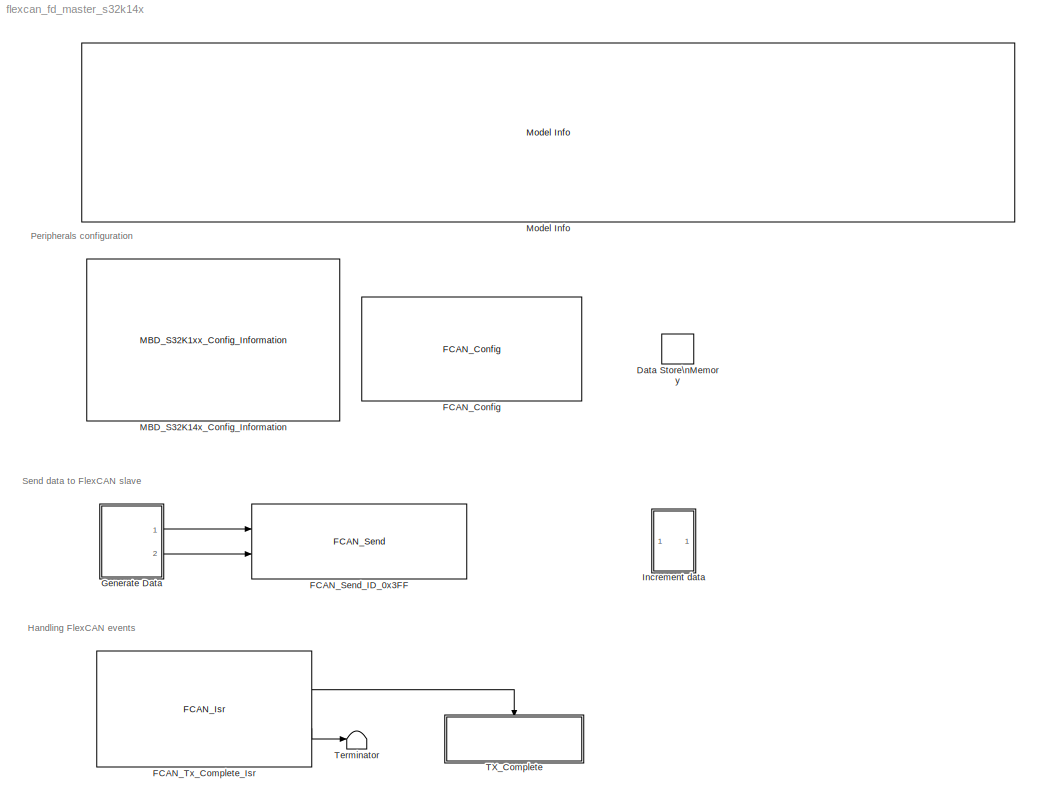
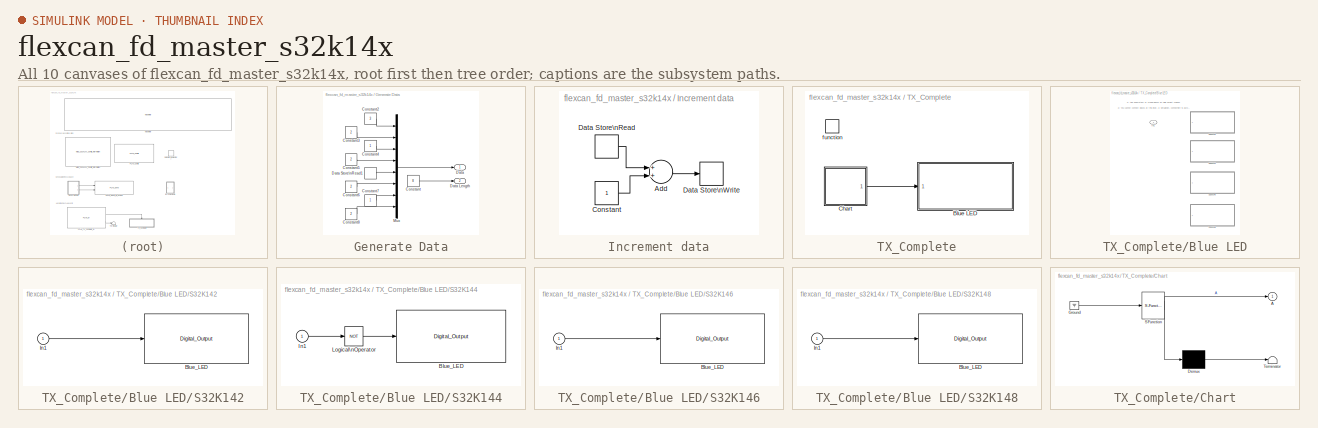
[diagram: thumbnail index - all 10 canvases of the model, root first then tree order]
MODEL flexcan_fd_master_s32k14x
KIND model
CONFIG InitFcn = mbd_s32k_consistency_checks(bdroot(gcs));
CONFIG PreLoadFcn = mbd_s32k_examples_preload_cbk;
BLOCK [DataStoreMemory] Data Store\nMemory
  DataStoreName = data
  OutDataTypeStr = uint8
  ReadBeforeWriteMsg = warning
  SID = 269
  ShowAdditionalParam = off
  WriteAfterReadMsg = warning
  WriteAfterWriteMsg = warning
BLOCK [Reference] FCAN_Config  REF=mbd_s32k1xx_ec_toolbox/Communication Blocks/CAN Blocks/FCAN_Config
  Ports = []
  Priority = 1
  SID = 2
  SourceBlock = mbd_s32k1xx_ec_toolbox/Communication Blocks/CAN Blocks/FCAN_Config
  SourceType = fcan_s32k_config
  bitrate = 500
  bitrate_adv_opts = off
  can_cbt_presdiv = 3
  can_cbt_propseg = 27
  can_cbt_pseg1 = 5
  can_cbt_pseg2 = 5
  can_cbt_rjw = 3
  can_clk_src = Peripheral clock
  can_fd_enable = on
  can_fifo_id_filter = {'0x0', '0x0', '0x0', '0x0', '0x0', '0x0', '0x0', '0x0'}
  can_fifo_id_filter_extended = off
  can_fifo_id_filter_remote = off
  can_fifo_id_format = A
  can_idfilter_extendedid = off
  can_idfilter_id1 = 0
  can_idfilter_id2 = 0
  can_idfilter_remoteframe = off
  can_idfilter_type = Match exact
  can_instance = 0
  can_match_timeout = 1
  can_max_num_mb = 16
  can_mode = Normal mode
  can_multiple_matches_en = off
  can_num_id_filters = 8
  can_num_matches = 1
  can_payload = 8
  can_payloadfilter_dlchigh = 0
  can_payloadfilter_dlclow = 0
  can_payloadfilter_enable = off
  can_payloadfilter_payload1_b0 = 0
  can_payloadfilter_payload1_b1 = 0
  can_payloadfilter_payload1_b2 = 0
  can_payloadfilter_payload1_b3 = 0
  can_payloadfilter_payload1_b4 = 0
  can_payloadfilter_payload1_b5 = 0
  can_payloadfilter_payload1_b6 = 0
  can_payloadfilter_payload1_b7 = 0
  can_payloadfilter_payload2_b0 = 0
  can_payloadfilter_payload2_b1 = 0
  can_payloadfilter_payload2_b2 = 0
  can_payloadfilter_payload2_b3 = 0
  can_payloadfilter_payload2_b4 = 0
  can_payloadfilter_payload2_b5 = 0
  can_payloadfilter_payload2_b6 = 0
  can_payloadfilter_payload2_b7 = 0
  can_payloadfilter_type = Match exact
  can_pn_enable = off
  can_presdiv = 7
  can_propseg = 7
  can_pseg1 = 6
  can_pseg2 = 3
  can_rjw = 3
  can_rx = PTE4: [CAN0_RX | CAN Rx channel]
  can_rxfifo_enable = off
  can_timeout_en = off
  can_tx = PTE5: [CAN0_TX | CAN Tx Channel]
  can_wakeup_match = off
  can_wakeup_timeout = off
  show_adv_opts = on
BLOCK [Reference] FCAN_Send_ID_0x3FF  REF=mbd_s32k1xx_ec_toolbox/Communication Blocks/CAN Blocks/FCAN_Send
  Ports = [2]
  Priority = 2
  SID = 212
  SourceBlock = mbd_s32k1xx_ec_toolbox/Communication Blocks/CAN Blocks/FCAN_Send
  SourceType = fcan_s32k_send
  can_enable_brs = off
  can_extended_id = off
  can_fd_enable = on
  can_fd_padding = 0
  can_id = 3FF
  can_instance = 0
  can_is_remote = off
  can_mb_idx = 15
  can_mode = Non-blocking
  can_timeout_ms = 0
  show_adv_opts = on
BLOCK [Reference] FCAN_Tx_Complete_Isr  REF=mbd_s32k1xx_ec_toolbox/Communication Blocks/CAN Blocks/FCAN_Isr
  Ports = [0, 2]
  SID = 86
  SourceBlock = mbd_s32k1xx_ec_toolbox/Communication Blocks/CAN Blocks/FCAN_Isr
  SourceType = fcan_s32k_isr
  can_event = Tx Complete
  can_instance = 0
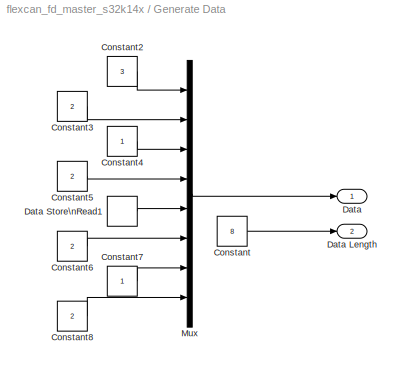
BLOCK [SubSystem] Generate Data
  Ports = [0, 2]
  RequestExecContextInheritance = off
  SID = 240
  Variant = off
BLOCK [Constant] Generate Data/Constant
  OutDataTypeStr = uint8
  SID = 203
  Value = 8
BLOCK [Constant] Generate Data/Constant2
  OutDataTypeStr = uint8
  SID = 204
  Value = 3
BLOCK [Constant] Generate Data/Constant3
  OutDataTypeStr = uint8
  SID = 205
  Value = 2
BLOCK [Constant] Generate Data/Constant4
  OutDataTypeStr = uint8
  SID = 206
BLOCK [Constant] Generate Data/Constant5
  OutDataTypeStr = uint8
  SID = 207
  Value = 2
BLOCK [Constant] Generate Data/Constant6
  OutDataTypeStr = uint8
  SID = 208
  Value = 2
BLOCK [Constant] Generate Data/Constant7
  OutDataTypeStr = uint8
  SID = 209
BLOCK [Constant] Generate Data/Constant8
  OutDataTypeStr = uint8
  SID = 210
  Value = 2
BLOCK [Outport] Generate Data/Data
  IconDisplay = Port number
  SID = 241
BLOCK [Outport] Generate Data/Data Length
  IconDisplay = Port number
  Port = 2
  SID = 242
BLOCK [DataStoreRead] Generate Data/Data Store\nRead1
  DataStoreName = data
  Ports = [0, 1]
  SID = 275
BLOCK [Mux] Generate Data/Mux
  DisplayOption = bar
  Inputs = 8
  Ports = [8, 1]
  SID = 213
BLOCK [SubSystem] Increment data
  Ports = []
  RequestExecContextInheritance = off
  SID = 270
  Variant = off
BLOCK [Sum] Increment data/Add
  InputSameDT = off
  OutDataTypeStr = Inherit: Inherit via internal rule
  Ports = [2, 1]
  SID = 271
  SaturateOnIntegerOverflow = off
BLOCK [Constant] Increment data/Constant
  OutDataTypeStr = uint8
  SID = 272
BLOCK [DataStoreRead] Increment data/Data Store\nRead
  DataStoreName = data
  Ports = [0, 1]
  SID = 273
BLOCK [DataStoreWrite] Increment data/Data Store\nWrite
  DataStoreName = data
  Ports = [1]
  SID = 274
BLOCK [Reference] MBD_S32K14x_Config_Information  REF=mbd_s32k1xx_ec_toolbox/MBD_S32K1xx_Config_Information
  ADC_PcrCheckEnDis = on
  AMMCLIB_PcrCheckEnDis = on
  CMP_PcrCheckEnDis = on
  CSEc_PcrCheckEnDis = on
  ConfigParams_PcrCheckEnDis = on
  FM_PcrCheckEnDis = on
  FTM_Dual_Edge_Inputs_PcrCheckEnDis = on
  FTM_Hall_Sensor_Inputs_PcrCheckEnDis = on
  FTM_Input_Edge_Inputs_PcrCheckEnDis = on
  FTM_PWM_PcrCheckEnDis = on
  FTM_Quadrature_Inputs_PcrCheckEnDis = on
  FlexCAN_PcrCheckEnDis = on
  FlexIO_PcrCheckEnDis = on
  GPIO_InputPcrCheckEnDis = on
  GPIO_OutputPcrCheckEnDis = on
  LIN_PcrCheckEnDis = on
  LPI2C_PcrCheckEnDis = on
  LPSPI_PcrCheckEnDis = on
  LPTMR_PcrCheckEnDis = on
  LPUART_PcrCheckEnDis = on
  ModelRef_PcrCheckEnDis = on
  PDB0_PcrCheckEnDis = on
  PIT_PcrCheckEnDis = on
  Ports = []
  Profile_PcrCheckEnDis = on
  RTC_PcrCheckEnDis = on
  SBC_PcrCheckEnDis = on
  SID = 246
  SourceBlock = mbd_s32k1xx_ec_toolbox/MBD_S32K1xx_Config_Information
  SourceType = MBDTBX_EC_S32K
  WDOG_PcrCheckEnDis = on
  config_params = []
  disp_str = Target : S32K144-64KB_SRAM\nPackage : 100-pin\nSystem clock : 80 MHz\nXTAL clock : External 8 MHz\nCompiler : IAR\nTarget Type : FLASH\nDownload Code after build : off\nStep Tick Interrupt Priority : 15
  ds_import_enable = on
  eDMA_PcrCheckEnDis = on
  gcc_target_assemble_opts = -mcpu=cortex-m4 -mthumb -mfloat-abi=hard -mfpu=fpv4-sp-d16 -g
  gcc_target_compile_opts = -mcpu=cortex-m4 -mthumb -mfloat-abi=hard -mfpu=fpv4-sp-d16 -O1 -g -gstrict-dwarf
  gcc_target_default_lcf = on
  gcc_target_link_opts = -mcpu=cortex-m4 -mthumb -mfloat-abi=hard -mfpu=fpv4-sp-d16
  gcc_target_user_lcf = S32K144_64_flash.ld
  ghs_target_assemble_opts = -cpu=cortexm4f -fpu=vfpv4_d16
  ghs_target_compile_opts = -cpu=cortexm4f -thumb -DARM_MATH_CM4 -fpu=vfpv4_d16 -fsingle -Ogeneral -Wundef -Wimplicit-int -Wshadow -Wtrigraphs --no_commons --gnu_asm -gnu99 -gdwarf-2 -G
  ghs_target_default_lcf = on
  ghs_target_link_opts = -cpu=cortexm4f -thumb -fpu=vfpv4_d16
  ghs_target_user_lcf = S32K144_64_flash.ld
  iar_target_assemble_opts = --cpu Cortex-M4F --thumb --fpu VFPv4_sp
  iar_target_compile_opts = --cpu=Cortex-M4F --thumb --fpu=VFPv4_sp -Ol -e --debug --dlib_config normal
  iar_target_default_lcf = on
  iar_target_link_opts = --no_exceptions --vfe --inline
  iar_target_user_lcf = S32K144_64_flash.icf
  mbdt_ver = 0
  mcu_steptick_prio = 15
  mcu_steptick_timer = LPIT Channel 0
  mcu_system_clock_freq = 80
  mcu_target_name = S32K144
  mcu_target_package = 100-LQFP
  mcu_target_sram_size = 64KB
  mcu_xtal_freq = External 8
  pil_download_enable = off
  pil_download_rate = 57600
  pil_opensda_drive = Custom
  pil_opensda_drive_custom = D
  pil_uart_instance = 0
  pil_uart_rx = PTA2: [LPUART0_RX | Receive]
  pil_uart_tx = PTA3: [LPUART0_TX | Transmit]
  rbl_com_port = Custom
  rbl_com_port_custom = COM1
  rbl_download_enable = off
  rbl_download_interface = OpenSDA
  rbl_restart_request = off
  rbl_start_delay = 5000000
  target_compiler = GCC
  target_memory = FLASH
BLOCK [Reference] Model Info  REF=simulink/Model-Wide\nUtilities/Model Info
  DisplayStringWithTags = Model Name: %<ModelName>\n\nDescription: %<Description>
  Frame = off
  HorizontalTextAlignment = Left
  LeftAlignmentValue = 0.02
  MaskDisplayString = Model Name: flexcan_fd_master_s32k14x\\n\\nDescription: This model tests FlexCAN communication using CAN with Flexible Data-Rate.\\nThe FlexCAN Master sends on each step a message with ID 0x3FF to the slave.\\nOn each Tx Complete event Blue LED is toggled.\\n\\nHW prerequisite:\\n- S32K142EVB-Q100 / S32K144EVB-Q100 / S32K146EVB-Q144 / S32K148EVB-Q144\\n- Make sure that J107 has pin 1 and 2 connect...<+211ch>
  Ports = []
  SID = 74
  SourceBlock = simulink/Model-Wide\nUtilities/Model Info
  SourceProductBaseCode = SL
  SourceProductName = Simulink
  SourceType = CMBlock
BLOCK [SubSystem] TX_Complete
  Ports = [0, 0, 0, 1]
  RTWSystemCode = Nonreusable function
  RequestExecContextInheritance = off
  SID = 110
  TreatAsAtomicUnit = on
  Variant = off
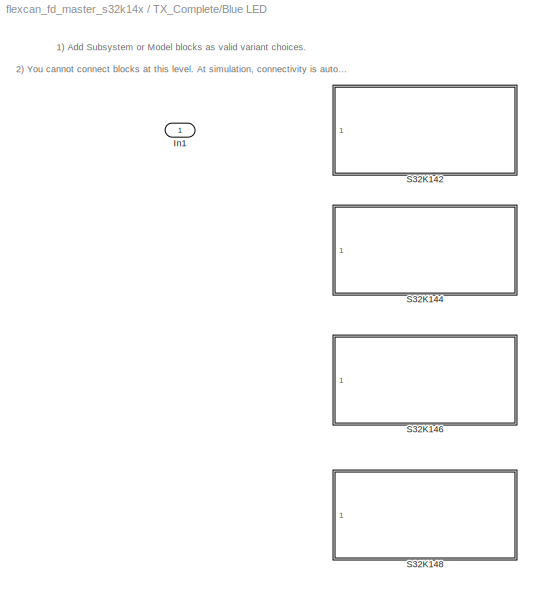
BLOCK [SubSystem] TX_Complete/Blue LED
  Ports = [1]
  RequestExecContextInheritance = off
  SID = 253
  Variant = on
BLOCK [Inport] TX_Complete/Blue LED/In1
  IconDisplay = Port number
  SID = 254
BLOCK [SubSystem] TX_Complete/Blue LED/S32K142
  Ports = [1]
  RequestExecContextInheritance = off
  SID = 255
  Variant = off
  VariantControl = VSS_S32k142
BLOCK [Reference] TX_Complete/Blue LED/S32K142/Blue_LED  REF=mbd_s32k1xx_ec_toolbox/GPIO Blocks/Digital_Output
  Ports = [1]
  SID = 257
  SourceBlock = mbd_s32k1xx_ec_toolbox/GPIO Blocks/Digital_Output
  SourceType = gpio_s32k_output
  drive_strength = Low
  gpio_pin = PTD0: [PTD0 | Port D I/O]
  init_val = Low
BLOCK [Inport] TX_Complete/Blue LED/S32K142/In1
  IconDisplay = Port number
  SID = 256
BLOCK [SubSystem] TX_Complete/Blue LED/S32K144
  Ports = [1]
  RequestExecContextInheritance = off
  SID = 258
  Variant = off
  VariantControl = VSS_S32k144
BLOCK [Reference] TX_Complete/Blue LED/S32K144/Blue_LED  REF=mbd_s32k1xx_ec_toolbox/GPIO Blocks/Digital_Output
  Ports = [1]
  SID = 260
  SourceBlock = mbd_s32k1xx_ec_toolbox/GPIO Blocks/Digital_Output
  SourceType = gpio_s32k_output
  drive_strength = Low
  gpio_pin = PTD0: [PTD0 | Port D I/O]
  init_val = Low
BLOCK [Inport] TX_Complete/Blue LED/S32K144/In1
  IconDisplay = Port number
  SID = 259
BLOCK [Logic] TX_Complete/Blue LED/S32K144/Logical\nOperator
  AllPortsSameDT = off
  Operator = NOT
  OutDataTypeStr = boolean
  Ports = [1, 1]
  SID = 261
BLOCK [SubSystem] TX_Complete/Blue LED/S32K146
  Ports = [1]
  RequestExecContextInheritance = off
  SID = 262
  Variant = off
  VariantControl = VSS_S32k146
BLOCK [Reference] TX_Complete/Blue LED/S32K146/Blue_LED  REF=mbd_s32k1xx_ec_toolbox/GPIO Blocks/Digital_Output
  Ports = [1]
  SID = 264
  SourceBlock = mbd_s32k1xx_ec_toolbox/GPIO Blocks/Digital_Output
  SourceType = gpio_s32k_output
  drive_strength = Low
  gpio_pin = PTD0: [PTD0 | Port D I/O]
  init_val = Low
BLOCK [Inport] TX_Complete/Blue LED/S32K146/In1
  IconDisplay = Port number
  SID = 263
BLOCK [SubSystem] TX_Complete/Blue LED/S32K148
  Ports = [1]
  RequestExecContextInheritance = off
  SID = 265
  Variant = off
  VariantControl = VSS_S32k148
BLOCK [Reference] TX_Complete/Blue LED/S32K148/Blue_LED  REF=mbd_s32k1xx_ec_toolbox/GPIO Blocks/Digital_Output
  Ports = [1]
  SID = 267
  SourceBlock = mbd_s32k1xx_ec_toolbox/GPIO Blocks/Digital_Output
  SourceType = gpio_s32k_output
  drive_strength = Low
  gpio_pin = PTE23: [PTE23 | Port E I/O]
  init_val = Low
BLOCK [Inport] TX_Complete/Blue LED/S32K148/In1
  IconDisplay = Port number
  SID = 266
BLOCK [SubSystem] TX_Complete/Chart
  ErrorFcn = Stateflow.Translate.translate
  PermitHierarchicalResolution = ExplicitOnly
  Ports = [0, 1]
  RequestExecContextInheritance = off
  SFBlockType = Chart
  SID = 121
  TreatAsAtomicUnit = on
  Variant = off
BLOCK [Outport] TX_Complete/Chart/ A
  IconDisplay = Port number
  SID = 121::6
BLOCK [Demux] TX_Complete/Chart/ Demux 
  Outputs = 1
  Ports = [1, 1]
  SID = 121::40
BLOCK [Ground] TX_Complete/Chart/ Ground 
  SID = 121::42
BLOCK [S-Function] TX_Complete/Chart/ SFunction 
  EnableBusSupport = off
  FunctionName = sf_sfun
  PortCounts = [1 2]
  Ports = [1, 2]
  SFcnIsStateOwnerBlock = off
  SFunctionDeploymentMode = off
  SID = 121::39
  Tag = Stateflow S-Function flexcan_fd_master_s32k14x 5
BLOCK [Terminator] TX_Complete/Chart/ Terminator 
  SID = 121::41
BLOCK [TriggerPort] TX_Complete/function
  Ports = []
  SID = 112
  StatesWhenEnabling = held
  TriggerType = function-call
  VariantControl = Variant
BLOCK [Terminator] Terminator
  SID = 239
ANNOTATION (root): Handling FlexCAN events
ANNOTATION (root): Peripherals configuration
ANNOTATION (root): Send data to FlexCAN slave
ANNOTATION TX_Complete/Blue LED: \n \n 1) Add Subsystem or Model blocks as valid variant choices. \n 2) You cannot connect blocks at this level. At simulation, connectivity is automatically \n determined, based on the active variant and port name matching.
LINE FCAN_Tx_Complete_Isr:1 -> TX_Complete:trigger
LINE FCAN_Tx_Complete_Isr:2 -> Terminator:1
LINE Generate Data/Constant2:1 -> Generate Data/Mux:1
LINE Generate Data/Constant3:1 -> Generate Data/Mux:2
LINE Generate Data/Constant4:1 -> Generate Data/Mux:3
LINE Generate Data/Constant5:1 -> Generate Data/Mux:4
LINE Generate Data/Constant6:1 -> Generate Data/Mux:6
LINE Generate Data/Constant7:1 -> Generate Data/Mux:7
LINE Generate Data/Constant8:1 -> Generate Data/Mux:8
LINE Generate Data/Constant:1 -> Generate Data/Data Length:1
LINE Generate Data/Data Store\nRead1:1 -> Generate Data/Mux:5
LINE Generate Data/Mux:1 -> Generate Data/Data:1
LINE Generate Data:1 -> FCAN_Send_ID_0x3FF:1
LINE Generate Data:2 -> FCAN_Send_ID_0x3FF:2
LINE Increment data/Add:1 -> Increment data/Data Store\nWrite:1
LINE Increment data/Constant:1 -> Increment data/Add:2
LINE Increment data/Data Store\nRead:1 -> Increment data/Add:1
LINE TX_Complete/Blue LED/S32K142/In1:1 -> TX_Complete/Blue LED/S32K142/Blue_LED:1
LINE TX_Complete/Blue LED/S32K144/In1:1 -> TX_Complete/Blue LED/S32K144/Logical\nOperator:1
LINE TX_Complete/Blue LED/S32K144/Logical\nOperator:1 -> TX_Complete/Blue LED/S32K144/Blue_LED:1
LINE TX_Complete/Blue LED/S32K146/In1:1 -> TX_Complete/Blue LED/S32K146/Blue_LED:1
LINE TX_Complete/Blue LED/S32K148/In1:1 -> TX_Complete/Blue LED/S32K148/Blue_LED:1
LINE TX_Complete/Chart/ Demux :1 -> TX_Complete/Chart/ Terminator :1
LINE TX_Complete/Chart/ Ground :1 -> TX_Complete/Chart/ SFunction :1
LINE TX_Complete/Chart/ SFunction :1 -> TX_Complete/Chart/ Demux :1
LINE TX_Complete/Chart/ SFunction :2 -> TX_Complete/Chart/ A:1
LINE TX_Complete/Chart:1 -> TX_Complete/Blue LED:1
CHART TX_Complete/Chart states=2 transitions=3
  STATE_LABEL 'A'
  STATE_LABEL 'A1'
